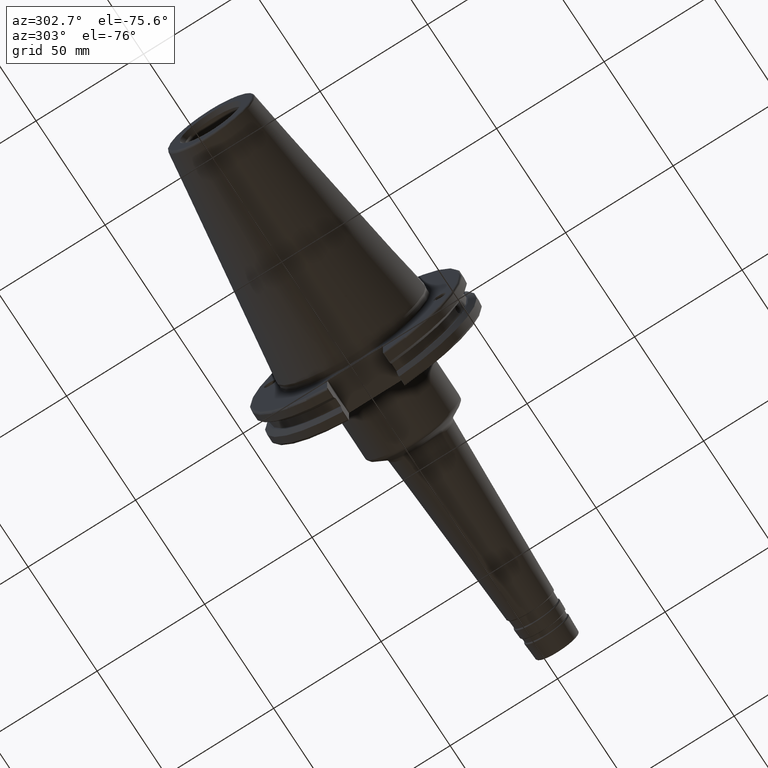
[diagram: clean part render]
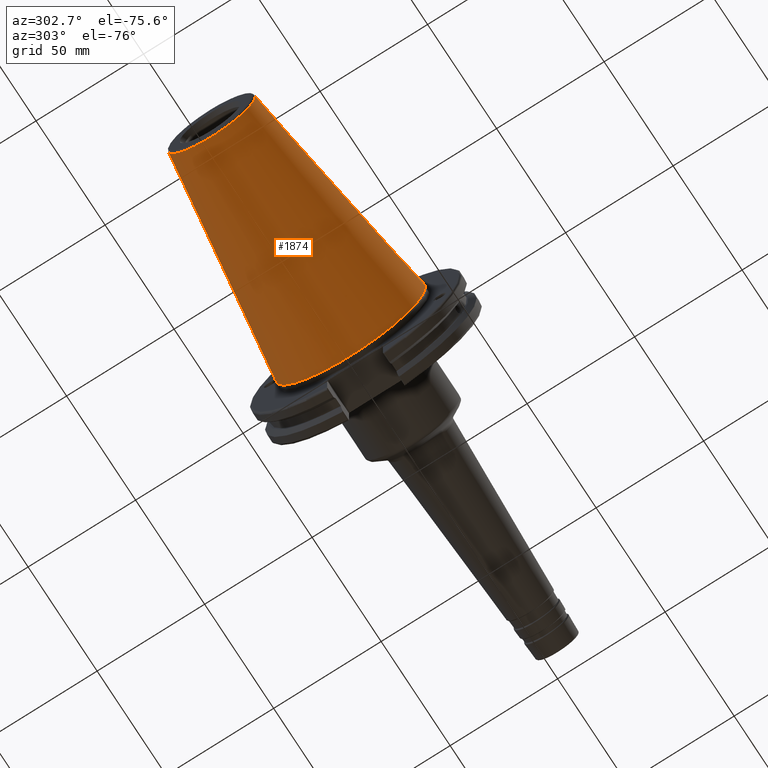
[diagram: same view with one face highlighted and labeled with its STEP entity id]
A machine part, auxiliary view. The second image highlights one B-rep face of the part: STEP entity #1874.
In plain terms, the highlighted conical surface has half-angle 8.297 deg.
Its self-contained STEP definition (entity closure, byte-faithful):
#88=CONICAL_SURFACE('',#2117,27.5166666666666,0.14481249823894);
#234=LINE('',#3703,#337);
#337=VECTOR('',#2629,27.5166666666666);
#462=FACE_OUTER_BOUND('',#586,.T.);
#586=EDGE_LOOP('',(#1647,#1648,#1649,#1650,#1651));
#724=CIRCLE('',#2111,20.233121911427);
#725=CIRCLE('',#2112,20.233121911427);
#729=CIRCLE('',#2118,34.925);
#915=VERTEX_POINT('',#3690);
#916=VERTEX_POINT('',#3691);
#919=VERTEX_POINT('',#3701);
#1174=EDGE_CURVE('',#915,#916,#724,.T.);
#1175=EDGE_CURVE('',#916,#915,#725,.T.);
#1179=EDGE_CURVE('',#919,#919,#729,.T.);
#1180=EDGE_CURVE('',#919,#916,#234,.T.);
#1647=ORIENTED_EDGE('',*,*,#1179,.F.);
#1648=ORIENTED_EDGE('',*,*,#1180,.T.);
#1649=ORIENTED_EDGE('',*,*,#1174,.F.);
#1650=ORIENTED_EDGE('',*,*,#1175,.F.);
#1651=ORIENTED_EDGE('',*,*,#1180,.F.);
#1874=ADVANCED_FACE('',(#462),#88,.T.);
#2111=AXIS2_PLACEMENT_3D('',#3692,#2613,#2614);
#2112=AXIS2_PLACEMENT_3D('',#3693,#2615,#2616);
#2117=AXIS2_PLACEMENT_3D('',#3700,#2625,#2626);
#2118=AXIS2_PLACEMENT_3D('',#3702,#2627,#2628);
#2613=DIRECTION('center_axis',(-1.,0.,0.));
#2614=DIRECTION('ref_axis',(0.,-1.,3.06161699786838E-17));
#2615=DIRECTION('center_axis',(-1.,0.,0.));
#2616=DIRECTION('ref_axis',(0.,-1.,3.06161699786838E-17));
#2625=DIRECTION('center_axis',(1.,0.,0.));
#2626=DIRECTION('ref_axis',(0.,1.,0.));
#2627=DIRECTION('center_axis',(1.,0.,0.));
#2628=DIRECTION('ref_axis',(0.,0.,-1.));
#2629=DIRECTION('',(-0.989532981063281,0.144306893071729,1.76724974695192E-17));
#3690=CARTESIAN_POINT('',(-100.744306893072,-2.47784279855872E-15,20.233121911427));
#3691=CARTESIAN_POINT('',(-100.744306893072,-20.233121911427,-2.47784279855872E-15));
#3692=CARTESIAN_POINT('Origin',(-100.744306893072,0.,-3.09730349819841E-15));
#3693=CARTESIAN_POINT('Origin',(-100.744306893072,0.,-3.09730349819841E-15));
#3700=CARTESIAN_POINT('Origin',(-50.8,0.,0.));
#3701=CARTESIAN_POINT('',(-8.88178419700125E-15,-34.925,-4.27707894602213E-15));
#3702=CARTESIAN_POINT('Origin',(0.,0.,0.));
#3703=CARTESIAN_POINT('',(-50.8,-27.5166666666666,-3.3698197756538E-15));